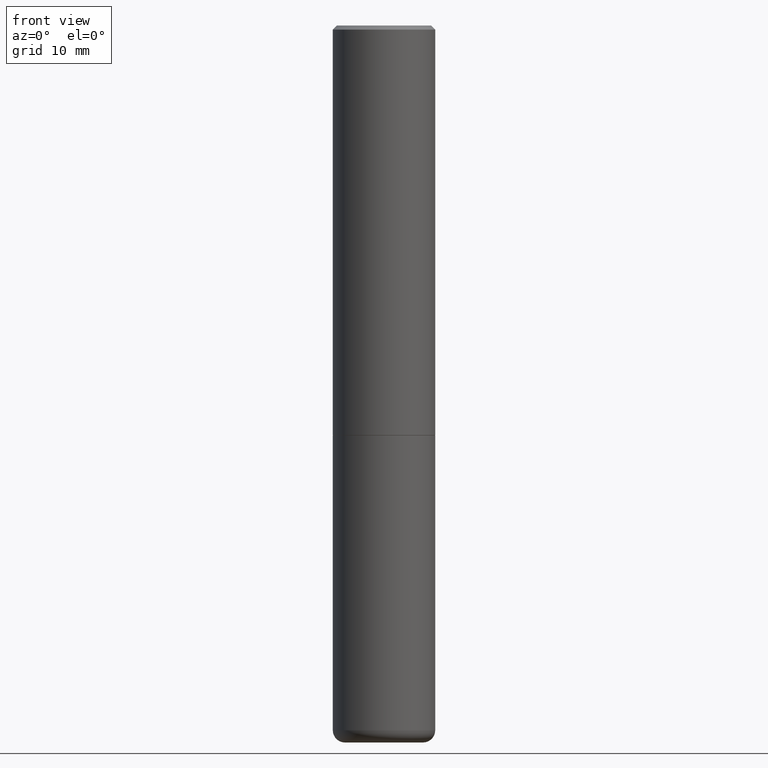
[diagram: clean part render]
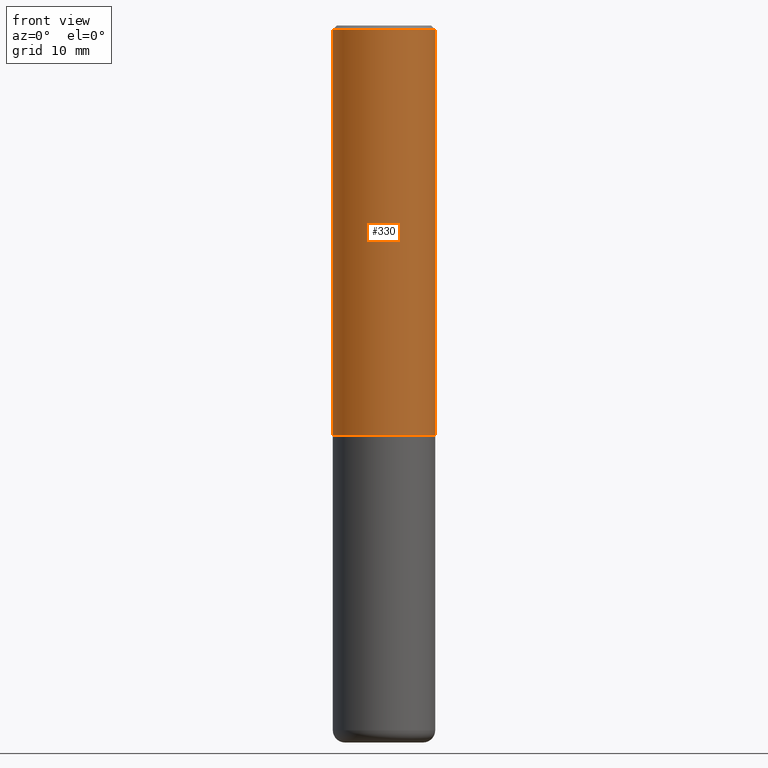
[diagram: same view with one face highlighted and labeled with its STEP entity id]
A machine part, front view. The second image highlights one B-rep face of the part: STEP entity #330.
In plain terms, the highlighted cylindrical surface (partial cylindrical patch) has radius 6.35 mm, axis along (-0, 0, 1).
Its self-contained STEP definition (entity closure, byte-faithful):
#4 = DIRECTION ( 'NONE',  ( -2.445468806185136597E-29, 3.491481338843145583E-15, 1.000000000000000000 ) ) ;
#44 = DIRECTION ( 'NONE',  ( -2.445468806185136877E-29, 3.491481338843145188E-15, 1.000000000000000000 ) ) ;
#47 = AXIS2_PLACEMENT_3D ( 'NONE', #374, #310, #90 ) ;
#73 = LINE ( 'NONE', #172, #265 ) ;
#84 = ORIENTED_EDGE ( 'NONE', *, *, #275, .T. ) ;
#87 = EDGE_CURVE ( 'NONE', #130, #298, #355, .T. ) ;
#90 = DIRECTION ( 'NONE',  ( 1.000000000000000000, -6.982962677686266711E-15, 4.876176775795935793E-29 ) ) ;
#106 = VERTEX_POINT ( 'NONE', #317 ) ;
#117 = ORIENTED_EDGE ( 'NONE', *, *, #167, .T. ) ;
#126 = FACE_OUTER_BOUND ( 'NONE', #273, .T. ) ;
#127 = CARTESIAN_POINT ( 'NONE',  ( 4.888492143564087591E-29, -6.979471196347447369E-15, -1.998999999999999888 ) ) ;
#130 = VERTEX_POINT ( 'NONE', #139 ) ;
#139 = CARTESIAN_POINT ( 'NONE',  ( -0.2499999999999999167, 1.675911042644703182E-15, -0.02000000000000005593 ) ) ;
#141 = ORIENTED_EDGE ( 'NONE', *, *, #87, .F. ) ;
#163 = DIRECTION ( 'NONE',  ( -2.445468806185136597E-29, 3.491481338843145583E-15, 1.000000000000000000 ) ) ;
#167 = EDGE_CURVE ( 'NONE', #259, #298, #73, .T. ) ;
#172 = CARTESIAN_POINT ( 'NONE',  ( 0.2500000000000001110, -1.745740669421567467E-15, 1.219044193948984509E-29 ) ) ;
#178 = CIRCLE ( 'NONE', #407, 0.2500000000000002776 ) ;
#197 = DIRECTION ( 'NONE',  ( -2.445468806185136877E-29, 3.491481338843145188E-15, 1.000000000000000000 ) ) ;
#198 = EDGE_CURVE ( 'NONE', #106, #130, #200, .T. ) ;
#200 = LINE ( 'NONE', #359, #414 ) ;
#221 = DIRECTION ( 'NONE',  ( 1.000000000000000000, -6.982962677686266711E-15, 0.000000000000000000 ) ) ;
#248 = CYLINDRICAL_SURFACE ( 'NONE', #47, 0.2500000000000001110 ) ;
#258 = DIRECTION ( 'NONE',  ( 1.000000000000000000, -6.982962677686267499E-15, 0.000000000000000000 ) ) ;
#259 = VERTEX_POINT ( 'NONE', #329 ) ;
#265 = VECTOR ( 'NONE', #44, 39.37007874015748143 ) ;
#268 = CARTESIAN_POINT ( 'NONE',  ( 4.890937612370287172E-31, -6.982962677686310098E-17, -0.02000000000000005593 ) ) ;
#272 = AXIS2_PLACEMENT_3D ( 'NONE', #268, #4, #258 ) ;
#273 = EDGE_LOOP ( 'NONE', ( #303, #84, #117, #141 ) ) ;
#275 = EDGE_CURVE ( 'NONE', #106, #259, #178, .T. ) ;
#279 = CARTESIAN_POINT ( 'NONE',  ( 0.2499999999999999167, -1.784954126219745400E-15, -0.02000000000000005593 ) ) ;
#298 = VERTEX_POINT ( 'NONE', #279 ) ;
#303 = ORIENTED_EDGE ( 'NONE', *, *, #198, .F. ) ;
#310 = DIRECTION ( 'NONE',  ( -2.445468806185136597E-29, 3.491481338843145583E-15, 1.000000000000000000 ) ) ;
#317 = CARTESIAN_POINT ( 'NONE',  ( -0.2500000000000002776, -1.748293572161900530E-15, -1.998999999999999888 ) ) ;
#329 = CARTESIAN_POINT ( 'NONE',  ( 0.2500000000000002776, -8.725211865769015625E-15, -1.998999999999999888 ) ) ;
#330 = ADVANCED_FACE ( 'NONE', ( #126 ), #248, .T. ) ;
#355 = CIRCLE ( 'NONE', #272, 0.2499999999999999167 ) ;
#359 = CARTESIAN_POINT ( 'NONE',  ( -0.2500000000000001110, 1.776356839400251254E-15, -1.229733772563727006E-29 ) ) ;
#374 = CARTESIAN_POINT ( 'NONE',  ( 0.000000000000000000, 0.000000000000000000, 0.000000000000000000 ) ) ;
#407 = AXIS2_PLACEMENT_3D ( 'NONE', #127, #163, #221 ) ;
#414 = VECTOR ( 'NONE', #197, 39.37007874015748143 ) ;